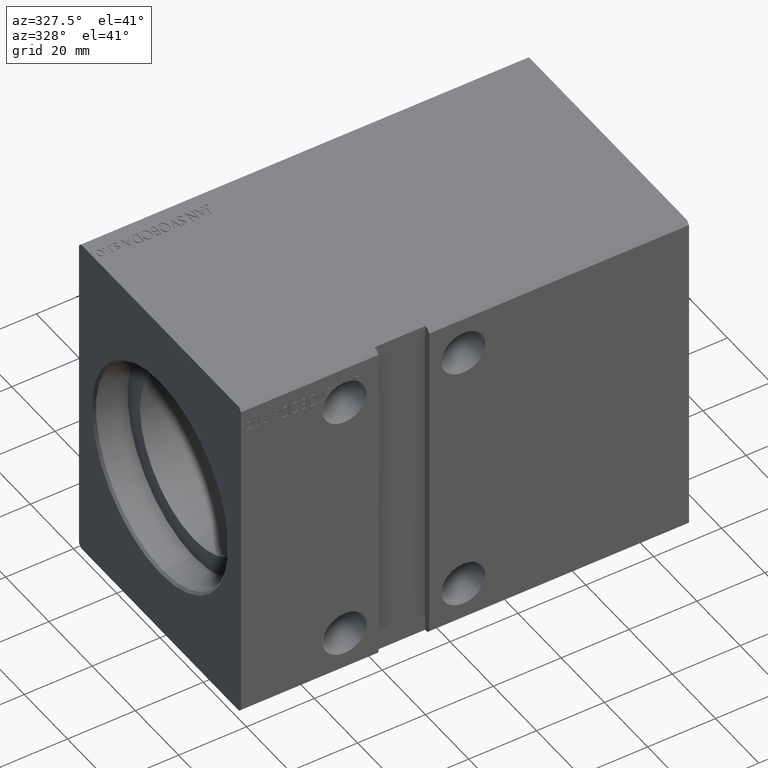
[diagram: clean part render]
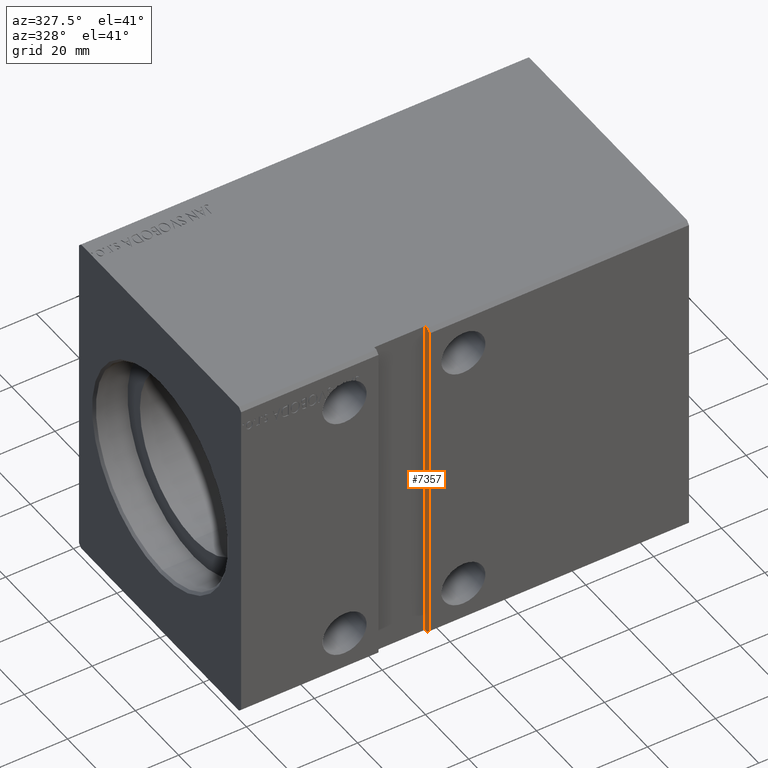
[diagram: same view with one face highlighted and labeled with its STEP entity id]
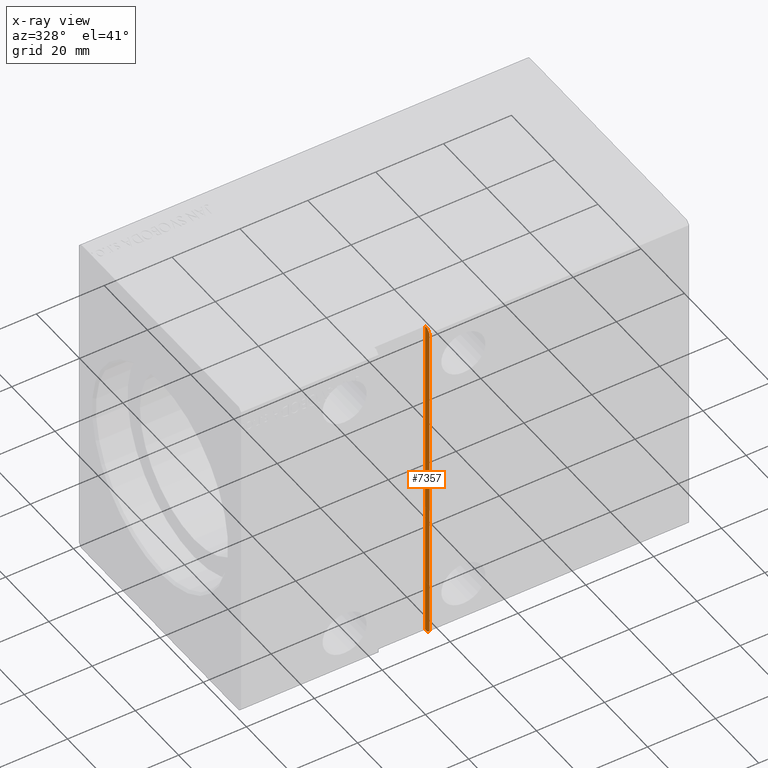
[diagram: x-ray of the same camera — body ghosted, the highlighted face saturated]
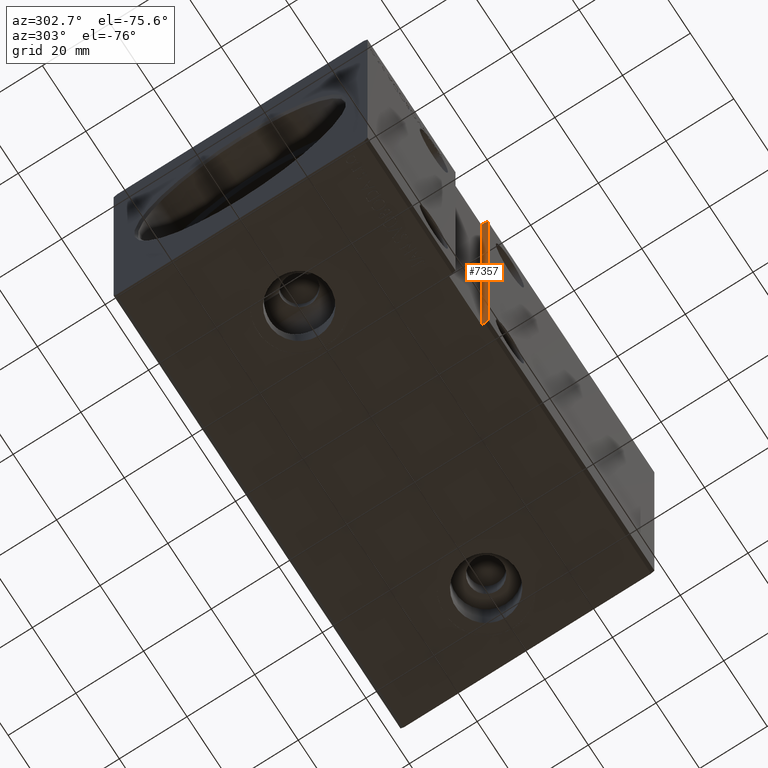
[diagram: same view with one face highlighted and labeled with its STEP entity id]
A machine part, auxiliary view. The second image highlights one B-rep face of the part: STEP entity #7357.
The next image is the same camera in x-ray: the body ghosted, the highlighted face saturated — about 0% of this face is hidden behind the body in this view.
A second angle (auxiliary view) of the same face is appended — the face is thin or edge-on in the first view.
In plain terms, the highlighted planar face has unit normal (1, -0, 0).
Its self-contained STEP definition (entity closure, byte-faithful):
#66 = AXIS2_PLACEMENT_3D ( 'NONE', #17292, #29534, #1137 ) ;
#1137 = DIRECTION ( 'NONE',  ( 6.938893903907229610E-17, 0.000000000000000000, -1.000000000000000000 ) ) ;
#1256 = VERTEX_POINT ( 'NONE', #9411 ) ;
#1703 = EDGE_CURVE ( 'NONE', #8895, #28988, #8653, .T. ) ;
#2291 = VERTEX_POINT ( 'NONE', #8137 ) ;
#3032 = EDGE_CURVE ( 'NONE', #2291, #28988, #27951, .T. ) ;
#4040 = FACE_OUTER_BOUND ( 'NONE', #16940, .T. ) ;
#4369 = EDGE_CURVE ( 'NONE', #2291, #1256, #40959, .T. ) ;
#4813 = VERTEX_POINT ( 'NONE', #13481 ) ;
#5365 = DIRECTION ( 'NONE',  ( 4.906538933386780602E-17, 0.7071067811865500152, -0.7071067811865451302 ) ) ;
#6886 = CARTESIAN_POINT ( 'NONE',  ( 55.50000000000000000, -35.50000000000001421, 49.99999999999998579 ) ) ;
#7357 = ADVANCED_FACE ( 'NONE', ( #4040 ), #23308, .F. ) ;
#7754 = LINE ( 'NONE', #20411, #38937 ) ;
#8137 = CARTESIAN_POINT ( 'NONE',  ( 55.50000000000000711, -37.50000000000001421, -48.99999999999997158 ) ) ;
#8653 = LINE ( 'NONE', #40392, #33430 ) ;
#8895 = VERTEX_POINT ( 'NONE', #13347 ) ;
#9409 = VECTOR ( 'NONE', #22839, 1000.000000000000000 ) ;
#9411 = CARTESIAN_POINT ( 'NONE',  ( 55.50000000000000000, -37.50000000000001421, 48.99999999999998579 ) ) ;
#11609 = LINE ( 'NONE', #24055, #13129 ) ;
#13129 = VECTOR ( 'NONE', #20748, 1000.000000000000114 ) ;
#13347 = CARTESIAN_POINT ( 'NONE',  ( 55.50000000000000711, -35.50000000000001421, -50.00000000000000000 ) ) ;
#13481 = CARTESIAN_POINT ( 'NONE',  ( 55.50000000000000000, -35.50000000000001421, 49.99999999999998579 ) ) ;
#14419 = CARTESIAN_POINT ( 'NONE',  ( 55.50000000000000000, -36.50000000000001421, 49.99999999999998579 ) ) ;
#14489 = CARTESIAN_POINT ( 'NONE',  ( 55.50000000000000711, -36.50000000000000711, -50.00000000000000000 ) ) ;
#15404 = VERTEX_POINT ( 'NONE', #14419 ) ;
#16940 = EDGE_LOOP ( 'NONE', ( #33108, #32086, #17669, #31737, #38737, #33235 ) ) ;
#17292 = CARTESIAN_POINT ( 'NONE',  ( 55.50000000000000000, -35.50000000000001421, 49.99999999999998579 ) ) ;
#17669 = ORIENTED_EDGE ( 'NONE', *, *, #1703, .T. ) ;
#18656 = EDGE_CURVE ( 'NONE', #4813, #15404, #7754, .T. ) ;
#20411 = CARTESIAN_POINT ( 'NONE',  ( 55.50000000000000000, -35.50000000000001421, 49.99999999999998579 ) ) ;
#20748 = DIRECTION ( 'NONE',  ( 4.906538933386797858E-17, -0.7071067811865474617, -0.7071067811865474617 ) ) ;
#20852 = VECTOR ( 'NONE', #5365, 1000.000000000000114 ) ;
#20888 = DIRECTION ( 'NONE',  ( -0.000000000000000000, -1.000000000000000000, -5.507058653894625237E-17 ) ) ;
#22839 = DIRECTION ( 'NONE',  ( -6.938893903907229610E-17, -0.000000000000000000, 1.000000000000000000 ) ) ;
#23308 = PLANE ( 'NONE',  #66 ) ;
#24055 = CARTESIAN_POINT ( 'NONE',  ( 55.49999999999999289, -36.50000000000001421, 49.99999999999998579 ) ) ;
#24188 = VECTOR ( 'NONE', #29131, 1000.000000000000000 ) ;
#25032 = CARTESIAN_POINT ( 'NONE',  ( 55.49999999999999289, -37.50000000000001421, -49.00000000000000000 ) ) ;
#25197 = CARTESIAN_POINT ( 'NONE',  ( 55.50000000000000000, -37.50000000000001421, 49.99999999999998579 ) ) ;
#26750 = EDGE_CURVE ( 'NONE', #15404, #1256, #11609, .T. ) ;
#27951 = LINE ( 'NONE', #25032, #20852 ) ;
#28988 = VERTEX_POINT ( 'NONE', #14489 ) ;
#29131 = DIRECTION ( 'NONE',  ( -6.938893903907229610E-17, -0.000000000000000000, 1.000000000000000000 ) ) ;
#29534 = DIRECTION ( 'NONE',  ( 1.000000000000000000, -3.821289572196897327E-33, 6.938893903907229610E-17 ) ) ;
#31737 = ORIENTED_EDGE ( 'NONE', *, *, #3032, .F. ) ;
#32086 = ORIENTED_EDGE ( 'NONE', *, *, #37568, .F. ) ;
#33066 = DIRECTION ( 'NONE',  ( -0.000000000000000000, -1.000000000000000000, -5.507058653894625237E-17 ) ) ;
#33108 = ORIENTED_EDGE ( 'NONE', *, *, #18656, .F. ) ;
#33235 = ORIENTED_EDGE ( 'NONE', *, *, #26750, .F. ) ;
#33430 = VECTOR ( 'NONE', #20888, 1000.000000000000000 ) ;
#34676 = LINE ( 'NONE', #6886, #9409 ) ;
#37568 = EDGE_CURVE ( 'NONE', #8895, #4813, #34676, .T. ) ;
#38737 = ORIENTED_EDGE ( 'NONE', *, *, #4369, .T. ) ;
#38937 = VECTOR ( 'NONE', #33066, 1000.000000000000000 ) ;
#40392 = CARTESIAN_POINT ( 'NONE',  ( 55.50000000000000711, -35.50000000000001421, -50.00000000000000000 ) ) ;
#40959 = LINE ( 'NONE', #25197, #24188 ) ;